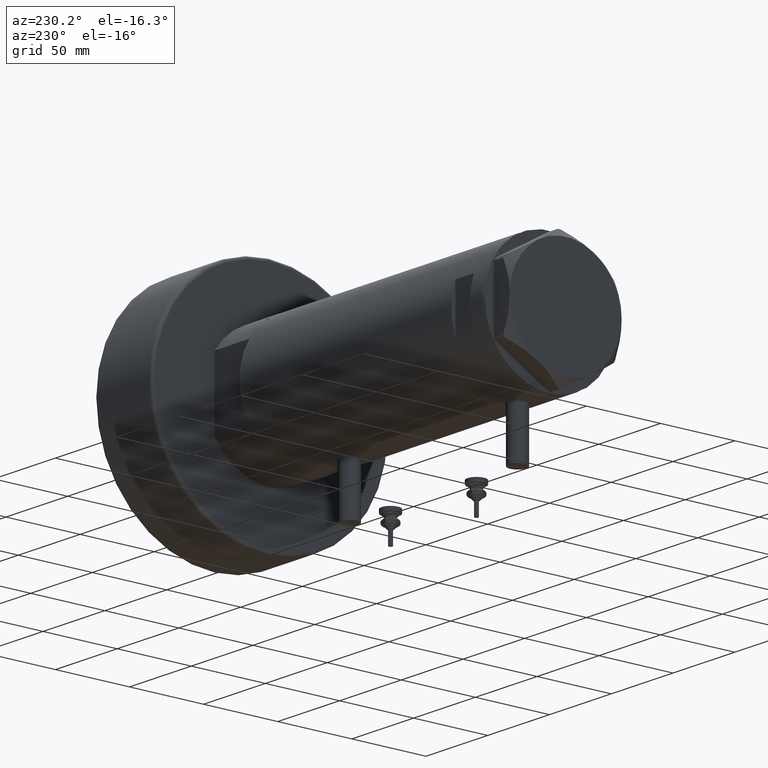
[diagram: clean part render]
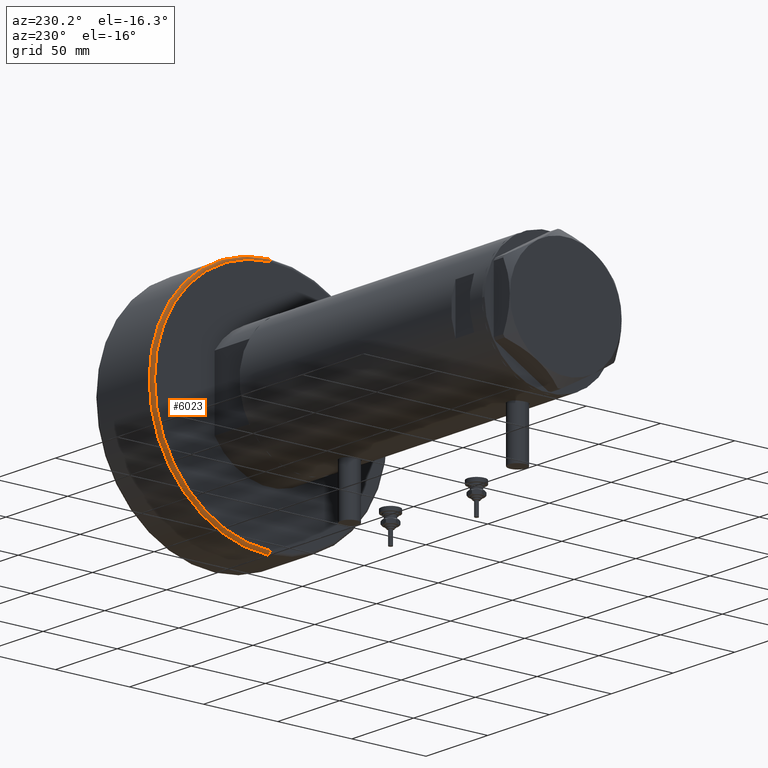
[diagram: same view with one face highlighted and labeled with its STEP entity id]
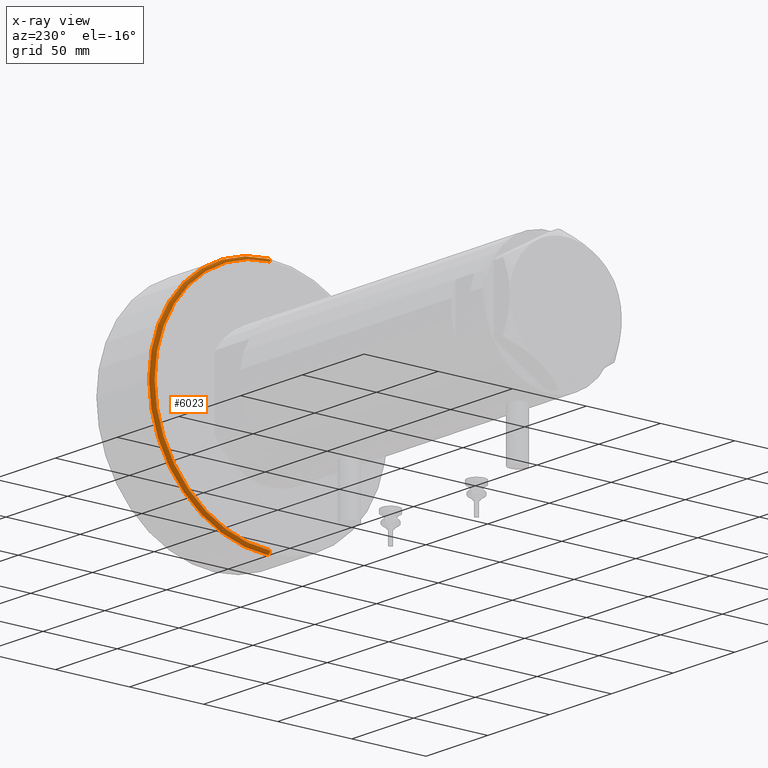
[diagram: x-ray of the same camera — body ghosted, the highlighted face saturated]
A machine part, auxiliary view. The second image highlights one B-rep face of the part: STEP entity #6023.
The next image is the same camera in x-ray: the body ghosted, the highlighted face saturated — about 0% of this face is hidden behind the body in this view.
In plain terms, the highlighted toroidal blend (fillet) surface has major radius 78 mm and minor (blend) radius 2 mm.
Its self-contained STEP definition (entity closure, byte-faithful):
#767 = VERTEX_POINT ( 'NONE', #6267 ) ;
#982 = EDGE_CURVE ( 'NONE', #767, #2505, #2891, .T. ) ;
#1116 = CARTESIAN_POINT ( 'NONE',  ( 78.00000000000000000, 0.000000000000000000, 2.000000000000001776 ) ) ;
#1186 = VERTEX_POINT ( 'NONE', #6161 ) ;
#1211 = DIRECTION ( 'NONE',  ( 0.000000000000000000, 0.000000000000000000, -1.000000000000000000 ) ) ;
#1630 = ORIENTED_EDGE ( 'NONE', *, *, #982, .F. ) ;
#2286 = FACE_OUTER_BOUND ( 'NONE', #4185, .T. ) ;
#2290 = DIRECTION ( 'NONE',  ( -1.000000000000000000, 1.224646799147349509E-16, 0.000000000000000000 ) ) ;
#2427 = DIRECTION ( 'NONE',  ( 1.000000000000000000, 0.000000000000000000, 0.000000000000000000 ) ) ;
#2505 = VERTEX_POINT ( 'NONE', #4662 ) ;
#2891 = CIRCLE ( 'NONE', #3709, 2.000000000000000000 ) ;
#2918 = AXIS2_PLACEMENT_3D ( 'NONE', #5591, #5037, #3578 ) ;
#3027 = CIRCLE ( 'NONE', #2918, 78.00000000000000000 ) ;
#3187 = VERTEX_POINT ( 'NONE', #3555 ) ;
#3387 = CARTESIAN_POINT ( 'NONE',  ( -78.00000000000000000, 9.552245033349355756E-15, 2.000000000000001776 ) ) ;
#3555 = CARTESIAN_POINT ( 'NONE',  ( -80.00000000000000000, 0.000000000000000000, 2.000000000000001776 ) ) ;
#3565 = ORIENTED_EDGE ( 'NONE', *, *, #4222, .T. ) ;
#3578 = DIRECTION ( 'NONE',  ( 1.000000000000000000, 0.000000000000000000, 0.000000000000000000 ) ) ;
#3695 = DIRECTION ( 'NONE',  ( 0.000000000000000000, -1.000000000000000000, 0.000000000000000000 ) ) ;
#3709 = AXIS2_PLACEMENT_3D ( 'NONE', #1116, #3695, #1211 ) ;
#4092 = EDGE_CURVE ( 'NONE', #2505, #3187, #5248, .T. ) ;
#4185 = EDGE_LOOP ( 'NONE', ( #4941, #3565, #4389, #1630 ) ) ;
#4222 = EDGE_CURVE ( 'NONE', #1186, #3187, #4635, .T. ) ;
#4246 = TOROIDAL_SURFACE ( 'NONE', #5479, 78.00000000000000000, 2.000000000000000000 ) ;
#4330 = AXIS2_PLACEMENT_3D ( 'NONE', #3387, #5718, #2290 ) ;
#4389 = ORIENTED_EDGE ( 'NONE', *, *, #4092, .F. ) ;
#4635 = CIRCLE ( 'NONE', #4330, 2.000000000000001776 ) ;
#4662 = CARTESIAN_POINT ( 'NONE',  ( 80.00000000000000000, 9.797174393178826052E-15, 2.000000000000001776 ) ) ;
#4790 = DIRECTION ( 'NONE',  ( 0.000000000000000000, 0.000000000000000000, 1.000000000000000000 ) ) ;
#4941 = ORIENTED_EDGE ( 'NONE', *, *, #5782, .F. ) ;
#5037 = DIRECTION ( 'NONE',  ( -0.000000000000000000, -0.000000000000000000, -1.000000000000000000 ) ) ;
#5248 = CIRCLE ( 'NONE', #6281, 80.00000000000000000 ) ;
#5479 = AXIS2_PLACEMENT_3D ( 'NONE', #5808, #6263, #5742 ) ;
#5591 = CARTESIAN_POINT ( 'NONE',  ( 0.000000000000000000, 0.000000000000000000, 0.000000000000000000 ) ) ;
#5718 = DIRECTION ( 'NONE',  ( 1.224646799147353207E-16, 1.000000000000000000, -0.000000000000000000 ) ) ;
#5742 = DIRECTION ( 'NONE',  ( 1.000000000000000000, 0.000000000000000000, 0.000000000000000000 ) ) ;
#5782 = EDGE_CURVE ( 'NONE', #1186, #767, #3027, .T. ) ;
#5808 = CARTESIAN_POINT ( 'NONE',  ( 0.000000000000000000, 0.000000000000000000, 2.000000000000001776 ) ) ;
#6023 = ADVANCED_FACE ( 'NONE', ( #2286 ), #4246, .T. ) ;
#6161 = CARTESIAN_POINT ( 'NONE',  ( -78.00000000000000000, 9.674709713264090904E-15, 0.000000000000000000 ) ) ;
#6263 = DIRECTION ( 'NONE',  ( 0.000000000000000000, 0.000000000000000000, 1.000000000000000000 ) ) ;
#6267 = CARTESIAN_POINT ( 'NONE',  ( 78.00000000000000000, 0.000000000000000000, 0.000000000000000000 ) ) ;
#6281 = AXIS2_PLACEMENT_3D ( 'NONE', #6307, #4790, #2427 ) ;
#6307 = CARTESIAN_POINT ( 'NONE',  ( 0.000000000000000000, 0.000000000000000000, 2.000000000000001776 ) ) ;